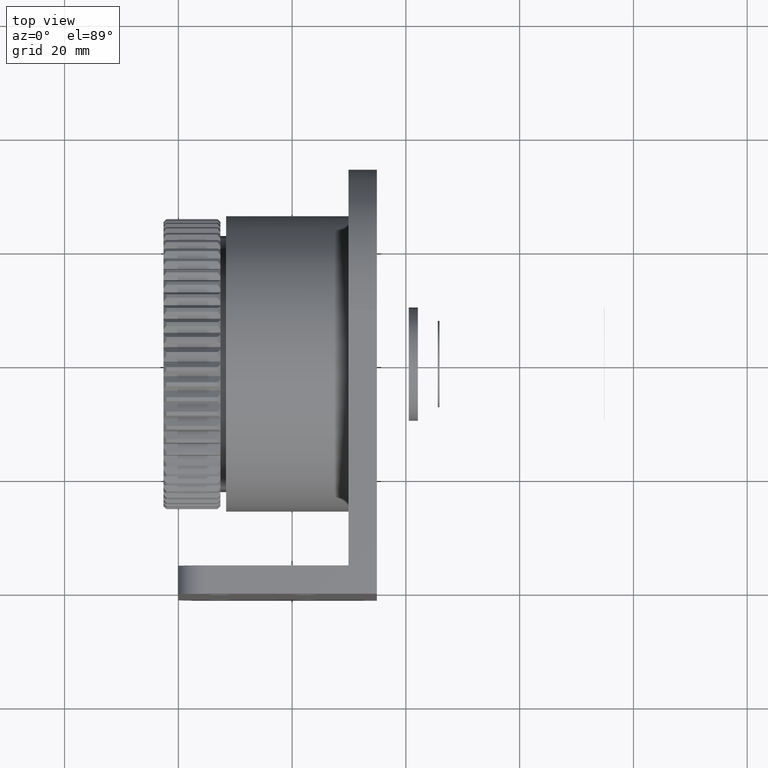
[diagram: clean part render]
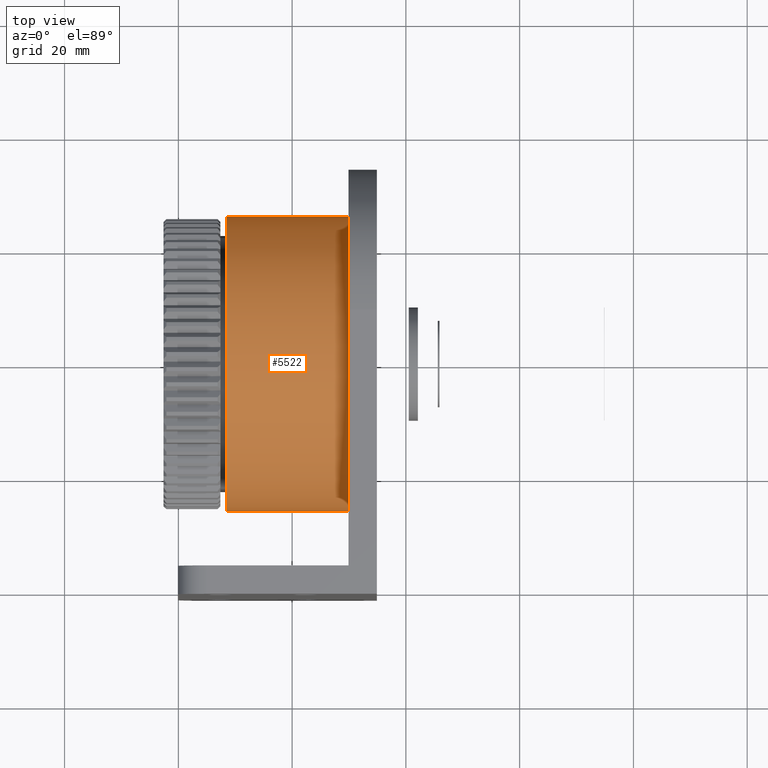
[diagram: same view with one face highlighted and labeled with its STEP entity id]
A machine part, top view. The second image highlights one B-rep face of the part: STEP entity #5522.
In plain terms, the highlighted cylindrical surface (bore or boss wall) has radius 26 mm, axis along (1, -0, -0).
Its self-contained STEP definition (entity closure, byte-faithful):
#36 = CARTESIAN_POINT ( 'NONE',  ( 10.08900195186725668, 25.99258128583481664, 0.6284063957403522860 ) ) ;
#171 = CARTESIAN_POINT ( 'NONE',  ( 10.09082783804148775, 25.99252738345616720, -0.6304466161154808068 ) ) ;
#181 = ORIENTED_EDGE ( 'NONE', *, *, #9206, .T. ) ;
#296 = CARTESIAN_POINT ( 'NONE',  ( -6.346794297041212118, 0.000000000000000000, 0.000000000000000000 ) ) ;
#299 = CARTESIAN_POINT ( 'NONE',  ( 8.410000000000007248, 0.000000000000000000, 0.000000000000000000 ) ) ;
#486 = EDGE_CURVE ( 'NONE', #10461, #10461, #631, .T. ) ;
#631 = CIRCLE ( 'NONE', #3572, 25.99999999999999645 ) ;
#1025 = CARTESIAN_POINT ( 'NONE',  ( 11.53919319579561353, 25.98723361895985562, 0.8201239494426201260 ) ) ;
#1164 = CARTESIAN_POINT ( 'NONE',  ( 11.42472281473631490, 25.98459331129807737, 0.8963884124058936198 ) ) ;
#1236 = CARTESIAN_POINT ( 'NONE',  ( 9.885119276384655151, 25.99999529775976725, -0.1346176008574405669 ) ) ;
#1452 = CARTESIAN_POINT ( 'NONE',  ( 10.91036455648828607, 25.97978781924328118, -1.024999935170028520 ) ) ;
#1477 = DIRECTION ( 'NONE',  ( 0.000000000000000000, 0.000000000000000000, -1.000000000000000000 ) ) ;
#2082 = CARTESIAN_POINT ( 'NONE',  ( 11.04305936589711123, 25.97978407220809771, 1.025094908051439102 ) ) ;
#2119 = EDGE_LOOP ( 'NONE', ( #13104 ) ) ;
#2211 = CARTESIAN_POINT ( 'NONE',  ( 9.911359757391274172, 25.99892368307513379, 0.2671651241639229624 ) ) ;
#2359 = CARTESIAN_POINT ( 'NONE',  ( 10.01442256960224952, 25.99516915751379642, -0.5161305486530441966 ) ) ;
#2611 = CARTESIAN_POINT ( 'NONE',  ( 8.410000000000007248, 0.000000000000000000, -25.99999999999999645 ) ) ;
#2738 = CARTESIAN_POINT ( 'NONE',  ( 29.91000000000000725, 0.000000000000000000, 0.000000000000000000 ) ) ;
#3220 = CARTESIAN_POINT ( 'NONE',  ( 11.90874220812687412, 25.99892742730478545, -0.2669052623775061139 ) ) ;
#3269 = DIRECTION ( 'NONE',  ( 0.000000000000000000, 0.000000000000000000, -1.000000000000000000 ) ) ;
#3287 = CARTESIAN_POINT ( 'NONE',  ( 10.01389064928532591, 25.99518729135540696, 0.5154100981634558432 ) ) ;
#3566 = CIRCLE ( 'NONE', #4692, 25.99999999999999645 ) ;
#3572 = AXIS2_PLACEMENT_3D ( 'NONE', #2738, #5922, #1477 ) ;
#4203 = CARTESIAN_POINT ( 'NONE',  ( 11.73012561832319278, 25.99255771500321899, -0.6292241994707374886 ) ) ;
#4486 = CARTESIAN_POINT ( 'NONE',  ( 11.93518385406295756, 26.00000724808607444, -0.1338098845601887188 ) ) ;
#4692 = AXIS2_PLACEMENT_3D ( 'NONE', #299, #12923, #3269 ) ;
#4747 = FACE_OUTER_BOUND ( 'NONE', #9412, .T. ) ;
#5076 = VERTEX_POINT ( 'NONE', #13725 ) ;
#5522 = ADVANCED_FACE ( 'NONE', ( #11097, #4747, #12138 ), #12214, .T. ) ;
#5621 = ORIENTED_EDGE ( 'NONE', *, *, #486, .T. ) ;
#5922 = DIRECTION ( 'NONE',  ( -1.000000000000000000, 0.000000000000000000, 0.000000000000000000 ) ) ;
#6396 = CARTESIAN_POINT ( 'NONE',  ( 10.64200004135300581, 25.98087355130885712, -0.9984265805189874721 ) ) ;
#6588 = CARTESIAN_POINT ( 'NONE',  ( 11.90792800535660767, 25.99889576973370353, 0.2697753348871334000 ) ) ;
#6913 = DIRECTION ( 'NONE',  ( 1.000000000000000000, -0.000000000000000000, -0.000000000000000000 ) ) ;
#7442 = CARTESIAN_POINT ( 'NONE',  ( 11.80482455796749619, 25.99514246799090600, 0.5176176635768496848 ) ) ;
#7514 = CARTESIAN_POINT ( 'NONE',  ( 11.80603621557881411, 25.99518459775953616, -0.5156001529772239467 ) ) ;
#7726 = CARTESIAN_POINT ( 'NONE',  ( 10.91036455648828607, 25.97978781924328118, -1.024999935170028520 ) ) ;
#7836 = VERTEX_POINT ( 'NONE', #2611 ) ;
#8504 = CARTESIAN_POINT ( 'NONE',  ( 10.77548241390681483, 25.97979158162499402, 1.024904573312847456 ) ) ;
#8652 = CARTESIAN_POINT ( 'NONE',  ( 10.28018786191818990, 25.98724509129368698, 0.8199201570701754038 ) ) ;
#8785 = CARTESIAN_POINT ( 'NONE',  ( 10.27998601702123693, 25.98725369036788635, -0.8195049407724620538 ) ) ;
#9174 = CARTESIAN_POINT ( 'NONE',  ( 29.91000000000000725, 0.000000000000000000, -25.99999999999999645 ) ) ;
#9206 = EDGE_CURVE ( 'NONE', #7836, #7836, #3566, .T. ) ;
#9412 = EDGE_LOOP ( 'NONE', ( #181 ) ) ;
#9567 = CARTESIAN_POINT ( 'NONE',  ( 9.884881533780829344, 26.00000467030102058, 0.1327950538061453134 ) ) ;
#9848 = CARTESIAN_POINT ( 'NONE',  ( 11.93481423098431016, 25.99999267642061440, 0.1366119021513876319 ) ) ;
#9895 = DIRECTION ( 'NONE',  ( 0.000000000000000000, 0.000000000000000000, -1.000000000000000000 ) ) ;
#10461 = VERTEX_POINT ( 'NONE', #9174 ) ;
#10697 = CARTESIAN_POINT ( 'NONE',  ( 10.77491770912768843, 25.97978591861086528, -1.025048108857975260 ) ) ;
#10907 = CARTESIAN_POINT ( 'NONE',  ( 11.72845340747509368, 25.99250455552462924, 0.6313647043328117769 ) ) ;
#11097 = FACE_OUTER_BOUND ( 'NONE', #12371, .T. ) ;
#11750 = CARTESIAN_POINT ( 'NONE',  ( 11.17791538645941074, 25.98087620985575796, 0.9983351679691235825 ) ) ;
#11768 = AXIS2_PLACEMENT_3D ( 'NONE', #296, #6913, #9895 ) ;
#11819 = CARTESIAN_POINT ( 'NONE',  ( 10.64133679474383420, 25.98088022920679308, 0.9982591129892800508 ) ) ;
#11941 = B_SPLINE_CURVE_WITH_KNOTS ( 'NONE', 3,
 ( #7726, #12022, #11956, #4203, #7514, #3220, #4486, #9848, #6588, #7442, #10907, #1025, #1164, #11750, #2082, #8504, #11819, #13924, #8652, #36, #3287, #2211, #9567, #1236, #12874, #2359, #171, #8785, #13852, #6396, #10697, #1452 ),
 .UNSPECIFIED., .T., .F.,
 ( 4, 2, 2, 2, 2, 2, 2, 2, 2, 2, 2, 2, 2, 2, 2, 4 ),
 ( 0.000000000000000000, 0.0008081040626989494666, 0.001212156094048425989, 0.001616208125397902403, 0.002020260156747379250, 0.002424312188096856314, 0.002828364219446332945, 0.003232416250795810009, 0.003636468282145286640, 0.004040520313494763704, 0.004444572344844239901, 0.004848624376193717833, 0.005252676407543194030, 0.005656728438892671094, 0.006060780470242148159, 0.006464832501591624356 ),
 .UNSPECIFIED. ) ;
#11956 = CARTESIAN_POINT ( 'NONE',  ( 11.44660698449242631, 25.98464208349962945, -0.9133971952618727963 ) ) ;
#12022 = CARTESIAN_POINT ( 'NONE',  ( 11.18125825120947781, 25.97979162050811652, -1.024903587794135484 ) ) ;
#12138 = FACE_BOUND ( 'NONE', #2119, .T. ) ;
#12214 = CYLINDRICAL_SURFACE ( 'NONE', #11768, 25.99999999999999645 ) ;
#12371 = EDGE_LOOP ( 'NONE', ( #5621 ) ) ;
#12444 = EDGE_CURVE ( 'NONE', #5076, #5076, #11941, .T. ) ;
#12874 = CARTESIAN_POINT ( 'NONE',  ( 9.912092164173021303, 25.99889575814179565, -0.2694988465389834276 ) ) ;
#12923 = DIRECTION ( 'NONE',  ( 1.000000000000000000, -0.000000000000000000, -0.000000000000000000 ) ) ;
#13104 = ORIENTED_EDGE ( 'NONE', *, *, #12444, .T. ) ;
#13725 = CARTESIAN_POINT ( 'NONE',  ( 10.91036455648828607, 25.97978781924327407, -1.024999935170028520 ) ) ;
#13852 = CARTESIAN_POINT ( 'NONE',  ( 10.39370989380774368, 25.98462087437522428, -0.8956138346238354808 ) ) ;
#13924 = CARTESIAN_POINT ( 'NONE',  ( 10.39297448959115400, 25.98463532445555302, 0.8952015393815688782 ) ) ;